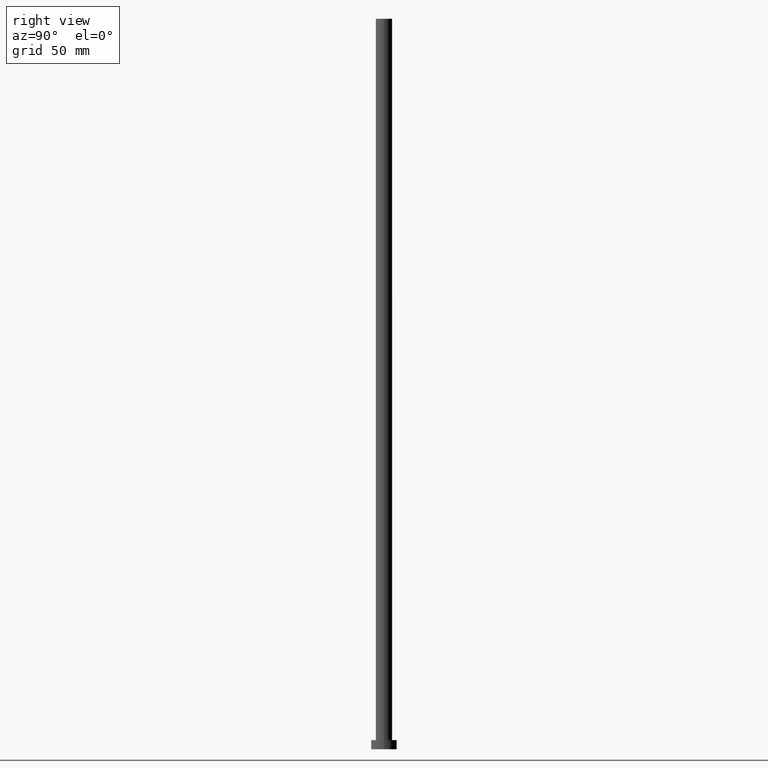
[diagram: clean part render]
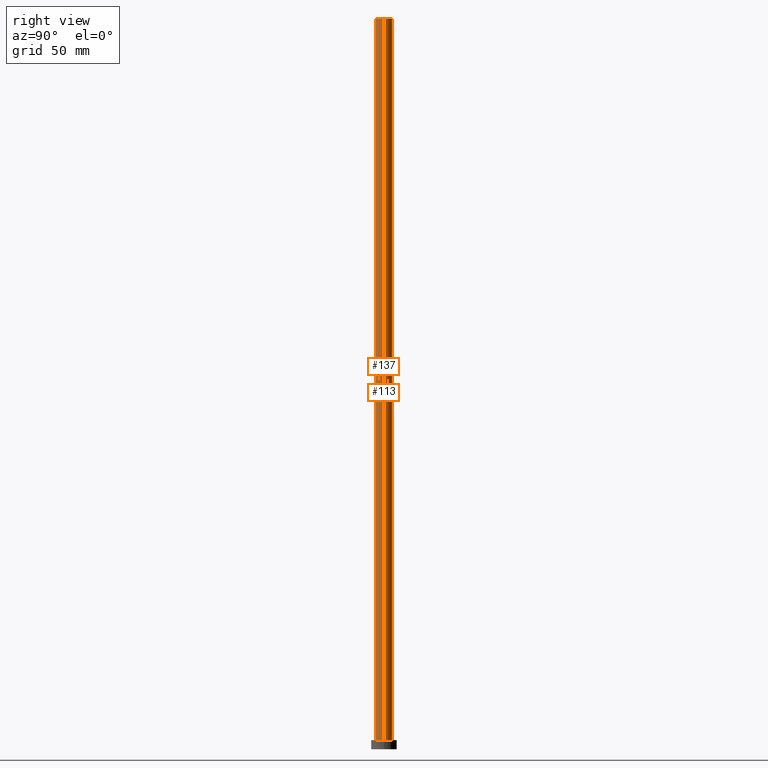
[diagram: same view with one multi-face feature highlighted, each face labeled with its STEP entity id]
A machine part, right view. The highlighted faces form ONE feature: a constant-radius fillet chain: 2 tangent blend faces with common blend radius 4.5 mm. The faces share edges in the B-rep.
Their STEP definitions:
[1] entity #113 (Cylinder):
#2 = VERTEX_POINT ( 'NONE', #144 ) ;
#5 = CARTESIAN_POINT ( 'NONE',  ( 4.500000000000000888, 5.510910596163088569E-16, 400.0000000000000000 ) ) ;
#14 = FACE_OUTER_BOUND ( 'NONE', #95, .T. ) ;
#16 = CARTESIAN_POINT ( 'NONE',  ( 0.000000000000000000, 0.000000000000000000, 5.000000000000000000 ) ) ;
#21 = DIRECTION ( 'NONE',  ( -0.000000000000000000, -0.000000000000000000, -1.000000000000000000 ) ) ;
#46 = DIRECTION ( 'NONE',  ( -0.000000000000000000, -0.000000000000000000, -1.000000000000000000 ) ) ;
#54 = VERTEX_POINT ( 'NONE', #5 ) ;
#55 = VERTEX_POINT ( 'NONE', #156 ) ;
#56 = CYLINDRICAL_SURFACE ( 'NONE', #76, 4.500000000000000888 ) ;
#59 = AXIS2_PLACEMENT_3D ( 'NONE', #89, #88, #253 ) ;
#62 = LINE ( 'NONE', #224, #201 ) ;
#64 = CARTESIAN_POINT ( 'NONE',  ( 4.500000000000000888, 5.510910596163088569E-16, 5.000000000000000000 ) ) ;
#69 = EDGE_CURVE ( 'NONE', #54, #234, #138, .T. ) ;
#70 = CIRCLE ( 'NONE', #91, 4.500000000000000888 ) ;
#76 = AXIS2_PLACEMENT_3D ( 'NONE', #217, #21, #246 ) ;
#88 = DIRECTION ( 'NONE',  ( 0.000000000000000000, 0.000000000000000000, 1.000000000000000000 ) ) ;
#89 = CARTESIAN_POINT ( 'NONE',  ( 0.000000000000000000, 0.000000000000000000, 400.0000000000000000 ) ) ;
#91 = AXIS2_PLACEMENT_3D ( 'NONE', #16, #182, #166 ) ;
#93 = ORIENTED_EDGE ( 'NONE', *, *, #235, .F. ) ;
#94 = EDGE_CURVE ( 'NONE', #2, #55, #62, .T. ) ;
#95 = EDGE_LOOP ( 'NONE', ( #93, #238, #153, #202 ) ) ;
#113 = ADVANCED_FACE ( 'NONE', ( #14 ), #56, .T. ) ;
#138 = LINE ( 'NONE', #173, #242 ) ;
#144 = CARTESIAN_POINT ( 'NONE',  ( -4.500000000000000888, 0.000000000000000000, 400.0000000000000000 ) ) ;
#153 = ORIENTED_EDGE ( 'NONE', *, *, #187, .T. ) ;
#156 = CARTESIAN_POINT ( 'NONE',  ( -4.500000000000000888, 0.000000000000000000, 5.000000000000000000 ) ) ;
#158 = DIRECTION ( 'NONE',  ( -0.000000000000000000, -0.000000000000000000, -1.000000000000000000 ) ) ;
#166 = DIRECTION ( 'NONE',  ( 1.000000000000000000, 0.000000000000000000, 0.000000000000000000 ) ) ;
#173 = CARTESIAN_POINT ( 'NONE',  ( 4.500000000000000888, 5.510910596163088569E-16, 400.0000000000000000 ) ) ;
#182 = DIRECTION ( 'NONE',  ( 0.000000000000000000, 0.000000000000000000, 1.000000000000000000 ) ) ;
#187 = EDGE_CURVE ( 'NONE', #234, #55, #70, .T. ) ;
#201 = VECTOR ( 'NONE', #46, 1000.000000000000000 ) ;
#202 = ORIENTED_EDGE ( 'NONE', *, *, #94, .F. ) ;
#217 = CARTESIAN_POINT ( 'NONE',  ( 0.000000000000000000, 0.000000000000000000, 400.0000000000000000 ) ) ;
#223 = CIRCLE ( 'NONE', #59, 4.500000000000000888 ) ;
#224 = CARTESIAN_POINT ( 'NONE',  ( -4.500000000000000888, 0.000000000000000000, 400.0000000000000000 ) ) ;
#234 = VERTEX_POINT ( 'NONE', #64 ) ;
#235 = EDGE_CURVE ( 'NONE', #54, #2, #223, .T. ) ;
#238 = ORIENTED_EDGE ( 'NONE', *, *, #69, .T. ) ;
#242 = VECTOR ( 'NONE', #158, 1000.000000000000000 ) ;
#246 = DIRECTION ( 'NONE',  ( -1.000000000000000000, 0.000000000000000000, 0.000000000000000000 ) ) ;
#253 = DIRECTION ( 'NONE',  ( 1.000000000000000000, 0.000000000000000000, 0.000000000000000000 ) ) ;
[2] entity #137 (Cylinder):
#2 = VERTEX_POINT ( 'NONE', #144 ) ;
#5 = CARTESIAN_POINT ( 'NONE',  ( 4.500000000000000888, 5.510910596163088569E-16, 400.0000000000000000 ) ) ;
#33 = CARTESIAN_POINT ( 'NONE',  ( 0.000000000000000000, 0.000000000000000000, 400.0000000000000000 ) ) ;
#34 = DIRECTION ( 'NONE',  ( 0.000000000000000000, 0.000000000000000000, 1.000000000000000000 ) ) ;
#43 = CIRCLE ( 'NONE', #72, 4.500000000000000888 ) ;
#46 = DIRECTION ( 'NONE',  ( -0.000000000000000000, -0.000000000000000000, -1.000000000000000000 ) ) ;
#54 = VERTEX_POINT ( 'NONE', #5 ) ;
#55 = VERTEX_POINT ( 'NONE', #156 ) ;
#62 = LINE ( 'NONE', #224, #201 ) ;
#64 = CARTESIAN_POINT ( 'NONE',  ( 4.500000000000000888, 5.510910596163088569E-16, 5.000000000000000000 ) ) ;
#69 = EDGE_CURVE ( 'NONE', #54, #234, #138, .T. ) ;
#72 = AXIS2_PLACEMENT_3D ( 'NONE', #33, #205, #104 ) ;
#87 = CARTESIAN_POINT ( 'NONE',  ( 0.000000000000000000, 0.000000000000000000, 5.000000000000000000 ) ) ;
#94 = EDGE_CURVE ( 'NONE', #2, #55, #62, .T. ) ;
#104 = DIRECTION ( 'NONE',  ( 1.000000000000000000, 0.000000000000000000, 0.000000000000000000 ) ) ;
#112 = ORIENTED_EDGE ( 'NONE', *, *, #94, .T. ) ;
#117 = ORIENTED_EDGE ( 'NONE', *, *, #160, .T. ) ;
#137 = ADVANCED_FACE ( 'NONE', ( #146 ), #227, .T. ) ;
#138 = LINE ( 'NONE', #173, #242 ) ;
#144 = CARTESIAN_POINT ( 'NONE',  ( -4.500000000000000888, 0.000000000000000000, 400.0000000000000000 ) ) ;
#146 = FACE_OUTER_BOUND ( 'NONE', #191, .T. ) ;
#148 = CARTESIAN_POINT ( 'NONE',  ( 0.000000000000000000, 0.000000000000000000, 400.0000000000000000 ) ) ;
#149 = AXIS2_PLACEMENT_3D ( 'NONE', #87, #34, #152 ) ;
#150 = DIRECTION ( 'NONE',  ( -0.000000000000000000, -0.000000000000000000, -1.000000000000000000 ) ) ;
#151 = DIRECTION ( 'NONE',  ( -1.000000000000000000, 0.000000000000000000, 0.000000000000000000 ) ) ;
#152 = DIRECTION ( 'NONE',  ( 1.000000000000000000, 0.000000000000000000, 0.000000000000000000 ) ) ;
#156 = CARTESIAN_POINT ( 'NONE',  ( -4.500000000000000888, 0.000000000000000000, 5.000000000000000000 ) ) ;
#158 = DIRECTION ( 'NONE',  ( -0.000000000000000000, -0.000000000000000000, -1.000000000000000000 ) ) ;
#160 = EDGE_CURVE ( 'NONE', #55, #234, #236, .T. ) ;
#169 = ORIENTED_EDGE ( 'NONE', *, *, #69, .F. ) ;
#173 = CARTESIAN_POINT ( 'NONE',  ( 4.500000000000000888, 5.510910596163088569E-16, 400.0000000000000000 ) ) ;
#177 = EDGE_CURVE ( 'NONE', #2, #54, #43, .T. ) ;
#191 = EDGE_LOOP ( 'NONE', ( #169, #220, #112, #117 ) ) ;
#201 = VECTOR ( 'NONE', #46, 1000.000000000000000 ) ;
#205 = DIRECTION ( 'NONE',  ( 0.000000000000000000, 0.000000000000000000, 1.000000000000000000 ) ) ;
#220 = ORIENTED_EDGE ( 'NONE', *, *, #177, .F. ) ;
#224 = CARTESIAN_POINT ( 'NONE',  ( -4.500000000000000888, 0.000000000000000000, 400.0000000000000000 ) ) ;
#227 = CYLINDRICAL_SURFACE ( 'NONE', #249, 4.500000000000000888 ) ;
#234 = VERTEX_POINT ( 'NONE', #64 ) ;
#236 = CIRCLE ( 'NONE', #149, 4.500000000000000888 ) ;
#242 = VECTOR ( 'NONE', #158, 1000.000000000000000 ) ;
#249 = AXIS2_PLACEMENT_3D ( 'NONE', #148, #150, #151 ) ;